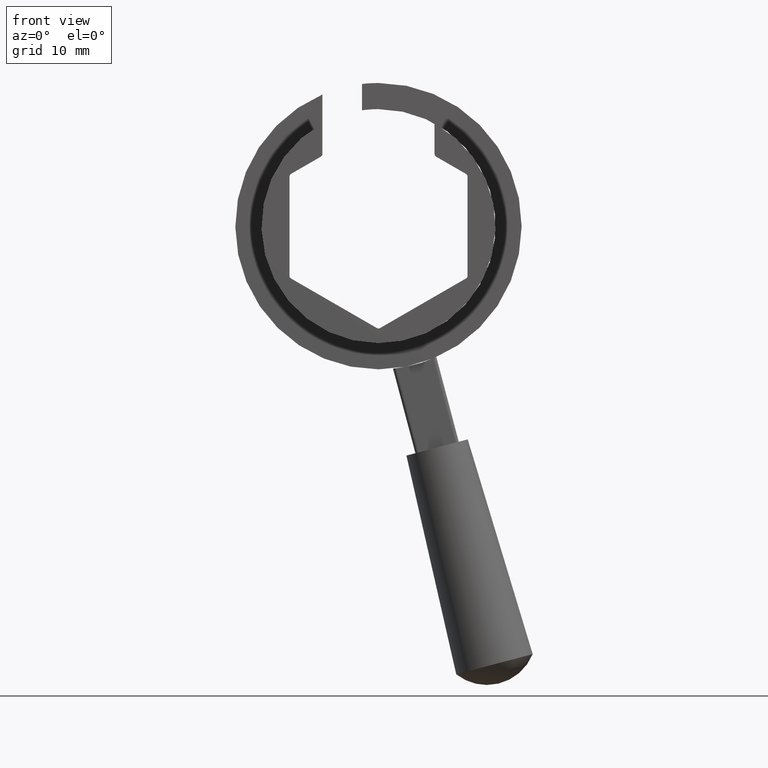
[diagram: clean part render]
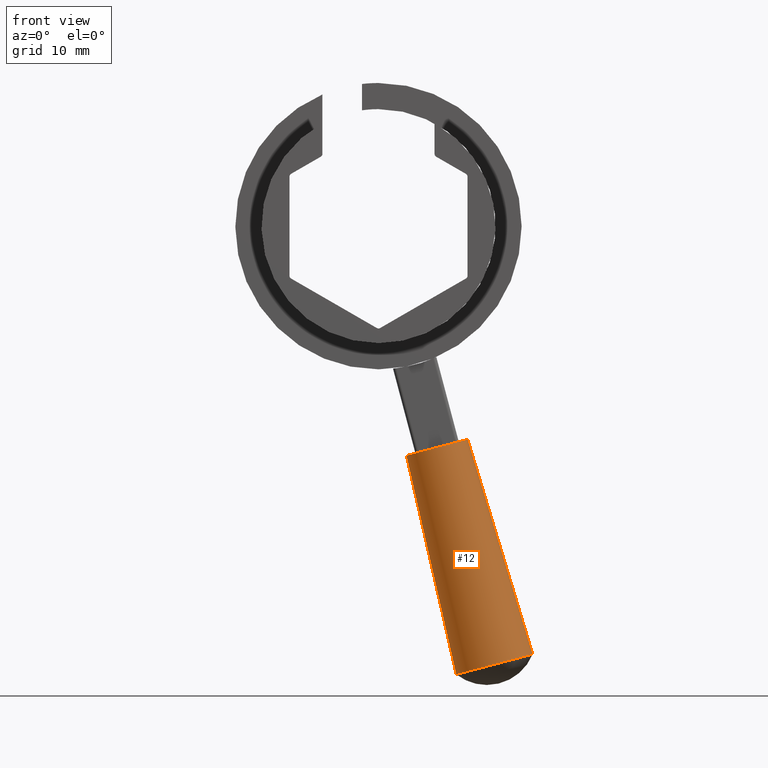
[diagram: same view with one face highlighted and labeled with its STEP entity id]
A machine part, front view. The second image highlights one B-rep face of the part: STEP entity #12.
In plain terms, the highlighted conical surface has half-angle 2 deg.
Its self-contained STEP definition (entity closure, byte-faithful):
#5 = EDGE_LOOP ( 'NONE', ( #7, #9, #484, #485 ) ) ;
#7 = ORIENTED_EDGE ( 'NONE', *, *, #228, .F. ) ;
#9 = ORIENTED_EDGE ( 'NONE', *, *, #38, .T. ) ;
#12 = ADVANCED_FACE ( 'NONE', ( #385 ), #384, .T. ) ;
#38 = EDGE_CURVE ( 'NONE', #225, #136, #686, .T. ) ;
#125 = EDGE_CURVE ( 'NONE', #136, #230, #626, .T. ) ;
#136 = VERTEX_POINT ( 'NONE', #759 ) ;
#196 = VERTEX_POINT ( 'NONE', #802 ) ;
#225 = VERTEX_POINT ( 'NONE', #878 ) ;
#228 = EDGE_CURVE ( 'NONE', #225, #196, #840, .T. ) ;
#230 = VERTEX_POINT ( 'NONE', #836 ) ;
#333 = DIRECTION ( 'NONE',  ( -0.9666852034741765200, 0.0000000000000000000, -0.2559681960402308000 ) ) ;
#334 = DIRECTION ( 'NONE',  ( 0.2559681960402310200, 0.0000000000000000000, -0.9666852034741764100 ) ) ;
#335 = CARTESIAN_POINT ( 'NONE',  ( 8.884656084556359800, 37.24899999999992400, -33.55364341258867700 ) ) ;
#336 = AXIS2_PLACEMENT_3D ( 'NONE', #335, #334, #333 ) ;
#384 = CONICAL_SURFACE ( 'NONE', #336, 4.808326112068525200, 0.03490658503988666700 ) ;
#385 = FACE_OUTER_BOUND ( 'NONE', #5, .T. ) ;
#484 = ORIENTED_EDGE ( 'NONE', *, *, #125, .T. ) ;
#485 = ORIENTED_EDGE ( 'NONE', *, *, #486, .F. ) ;
#486 = EDGE_CURVE ( 'NONE', #196, #230, #1284, .T. ) ;
#623 = DIRECTION ( 'NONE',  ( 0.2220754400602289500, 0.0000000000000000000, -0.9750294861808311800 ) ) ;
#624 = VECTOR ( 'NONE', #623, 1000.000000000000000 ) ;
#625 = CARTESIAN_POINT ( 'NONE',  ( 4.236518378541201300, 37.24899999999992400, -34.78442197346800000 ) ) ;
#626 = LINE ( 'NONE', #625, #624 ) ;
#683 = DIRECTION ( 'NONE',  ( -0.9666852034741765200, 0.0000000000000000000, -0.2559681960402308000 ) ) ;
#684 = DIRECTION ( 'NONE',  ( 0.2559681960402310200, 0.0000000000000000000, -0.9666852034741764100 ) ) ;
#685 = AXIS2_PLACEMENT_3D ( 'NONE', #748, #684, #683 ) ;
#686 = CIRCLE ( 'NONE', #685, 4.808326112068525200 ) ;
#748 = CARTESIAN_POINT ( 'NONE',  ( 8.884656084556359800, 37.24899999999992400, -33.55364341258867700 ) ) ;
#759 = CARTESIAN_POINT ( 'NONE',  ( 4.236518378541201300, 37.24899999999992400, -34.78442197346800000 ) ) ;
#802 = CARTESIAN_POINT ( 'NONE',  ( 23.38346375543394400, 37.24899999999992400, -64.88624915321261700 ) ) ;
#836 = CARTESIAN_POINT ( 'NONE',  ( 11.79168574441448500, 37.24899999999992400, -67.95563150820873900 ) ) ;
#837 = DIRECTION ( 'NONE',  ( 0.2895490942022360700, 4.273955692857151800E-018, -0.9571631637535289400 ) ) ;
#838 = VECTOR ( 'NONE', #837, 999.9999999999998900 ) ;
#839 = CARTESIAN_POINT ( 'NONE',  ( 13.53279379057151900, 37.24899999999992400, -32.32286485170936200 ) ) ;
#840 = LINE ( 'NONE', #839, #838 ) ;
#878 = CARTESIAN_POINT ( 'NONE',  ( 13.53279379057151900, 37.24899999999992400, -32.32286485170936200 ) ) ;
#1266 = DIRECTION ( 'NONE',  ( -0.9666852034741761900, 0.0000000000000000000, -0.2559681960402316300 ) ) ;
#1267 = DIRECTION ( 'NONE',  ( 0.2559681960402310200, 0.0000000000000000000, -0.9666852034741764100 ) ) ;
#1268 = CARTESIAN_POINT ( 'NONE',  ( 17.58757474992421500, 37.24899999999992400, -66.42094033071067800 ) ) ;
#1269 = AXIS2_PLACEMENT_3D ( 'NONE', #1268, #1267, #1266 ) ;
#1284 = CIRCLE ( 'NONE', #1269, 5.995632274787952900 ) ;